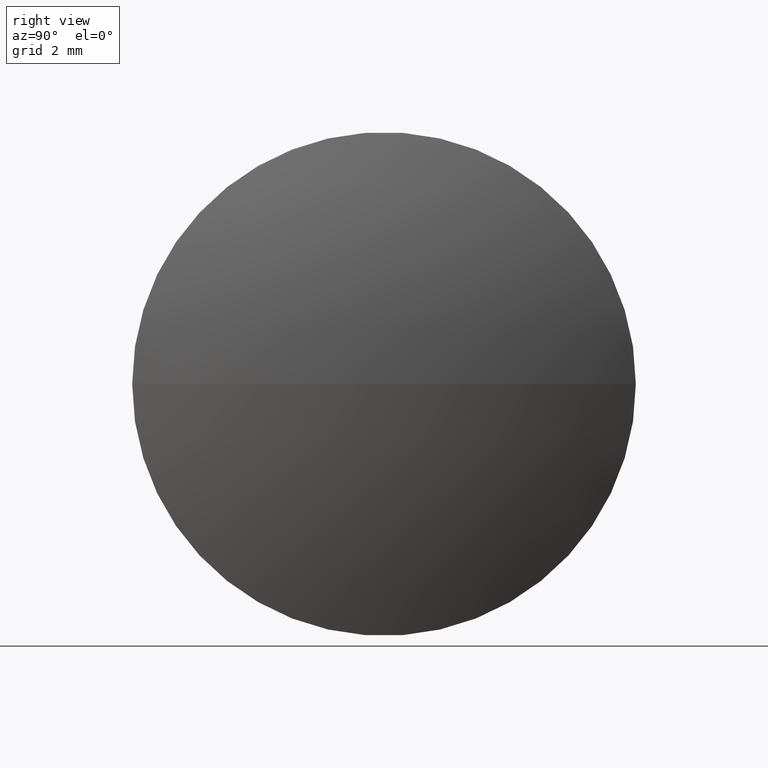
[diagram: clean part render]
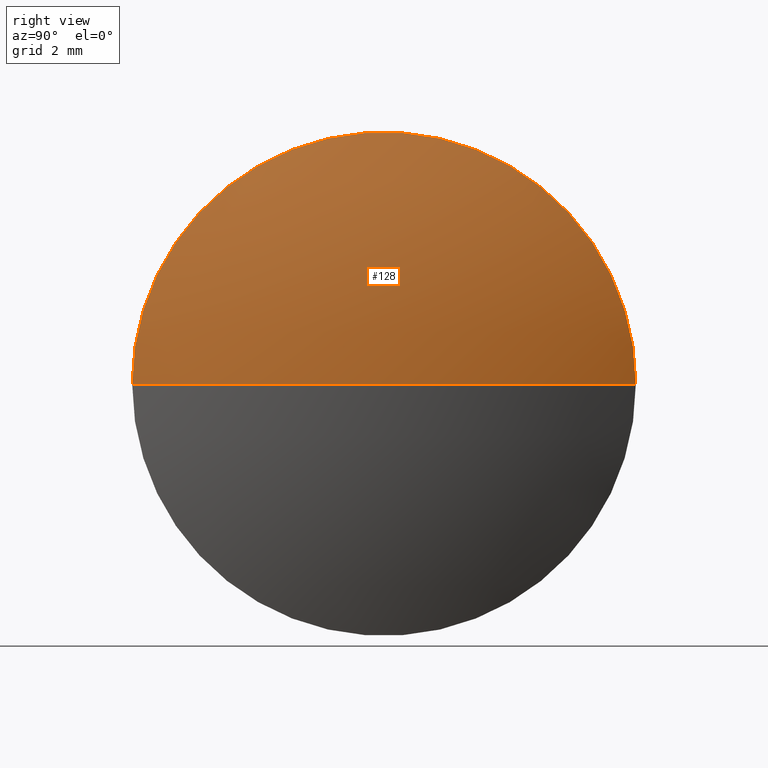
[diagram: same view with one face highlighted and labeled with its STEP entity id]
A machine part, right view. The second image highlights one B-rep face of the part: STEP entity #128.
In plain terms, the highlighted spherical surface has radius 17.9944 mm.
Its self-contained STEP definition (entity closure, byte-faithful):
#3 = CARTESIAN_POINT ( 'NONE',  ( 28.45595245652157200, 24.88233366330319300, 0.0000000000000000000 ) ) ;
#4 = CIRCLE ( 'NONE', #180, 17.99443062946765100 ) ;
#13 = DIRECTION ( 'NONE',  ( 0.0000000000000000000, 0.0000000000000000000, -1.000000000000000000 ) ) ;
#27 = CIRCLE ( 'NONE', #69, 17.99443062946765100 ) ;
#44 = CARTESIAN_POINT ( 'NONE',  ( 45.23538308598923400, 31.38235223478481800, 7.960226937963231700E-016 ) ) ;
#50 = DIRECTION ( 'NONE',  ( -0.0000000000000000000, 0.0000000000000000000, 1.000000000000000000 ) ) ;
#52 = AXIS2_PLACEMENT_3D ( 'NONE', #284, #50, #161 ) ;
#63 = CIRCLE ( 'NONE', #280, 6.500018571481608600 ) ;
#69 = AXIS2_PLACEMENT_3D ( 'NONE', #148, #13, #81 ) ;
#73 = EDGE_CURVE ( 'NONE', #112, #230, #63, .T. ) ;
#81 = DIRECTION ( 'NONE',  ( -1.000000000000000000, 0.0000000000000000000, 0.0000000000000000000 ) ) ;
#90 = SPHERICAL_SURFACE ( 'NONE', #52, 17.99443062946765100 ) ;
#100 = EDGE_LOOP ( 'NONE', ( #305, #108, #287 ) ) ;
#106 = DIRECTION ( 'NONE',  ( -1.000000000000000000, -4.344046041914963800E-015, -0.0000000000000000000 ) ) ;
#108 = ORIENTED_EDGE ( 'NONE', *, *, #113, .T. ) ;
#109 = DIRECTION ( 'NONE',  ( 0.0000000000000000000, -1.000000000000000000, -1.224646799147353200E-016 ) ) ;
#112 = VERTEX_POINT ( 'NONE', #294 ) ;
#113 = EDGE_CURVE ( 'NONE', #178, #230, #4, .T. ) ;
#128 = ADVANCED_FACE ( 'NONE', ( #190 ), #90, .T. ) ;
#148 = CARTESIAN_POINT ( 'NONE',  ( 28.45595245652157200, 24.88233366330319300, 0.0000000000000000000 ) ) ;
#161 = DIRECTION ( 'NONE',  ( 4.434554309501586900E-015, -1.000000000000000000, 0.0000000000000000000 ) ) ;
#178 = VERTEX_POINT ( 'NONE', #221 ) ;
#180 = AXIS2_PLACEMENT_3D ( 'NONE', #3, #255, #109 ) ;
#190 = FACE_OUTER_BOUND ( 'NONE', #100, .T. ) ;
#205 = CARTESIAN_POINT ( 'NONE',  ( 45.23538308598926200, 24.88233366330321100, 0.0000000000000000000 ) ) ;
#221 = CARTESIAN_POINT ( 'NONE',  ( 46.45038308598923000, 24.88233366330327100, 0.0000000000000000000 ) ) ;
#230 = VERTEX_POINT ( 'NONE', #44 ) ;
#255 = DIRECTION ( 'NONE',  ( 5.319922080579889100E-031, -1.224646799147353200E-016, 1.000000000000000000 ) ) ;
#265 = EDGE_CURVE ( 'NONE', #178, #112, #27, .T. ) ;
#276 = DIRECTION ( 'NONE',  ( 4.270076355997599800E-015, -1.000000000000000000, 0.0000000000000000000 ) ) ;
#280 = AXIS2_PLACEMENT_3D ( 'NONE', #205, #106, #276 ) ;
#284 = CARTESIAN_POINT ( 'NONE',  ( 28.45595245652157200, 24.88233366330319300, 0.0000000000000000000 ) ) ;
#287 = ORIENTED_EDGE ( 'NONE', *, *, #73, .F. ) ;
#294 = CARTESIAN_POINT ( 'NONE',  ( 45.23538308598929100, 18.38231509182166000, 0.0000000000000000000 ) ) ;
#305 = ORIENTED_EDGE ( 'NONE', *, *, #265, .F. ) ;